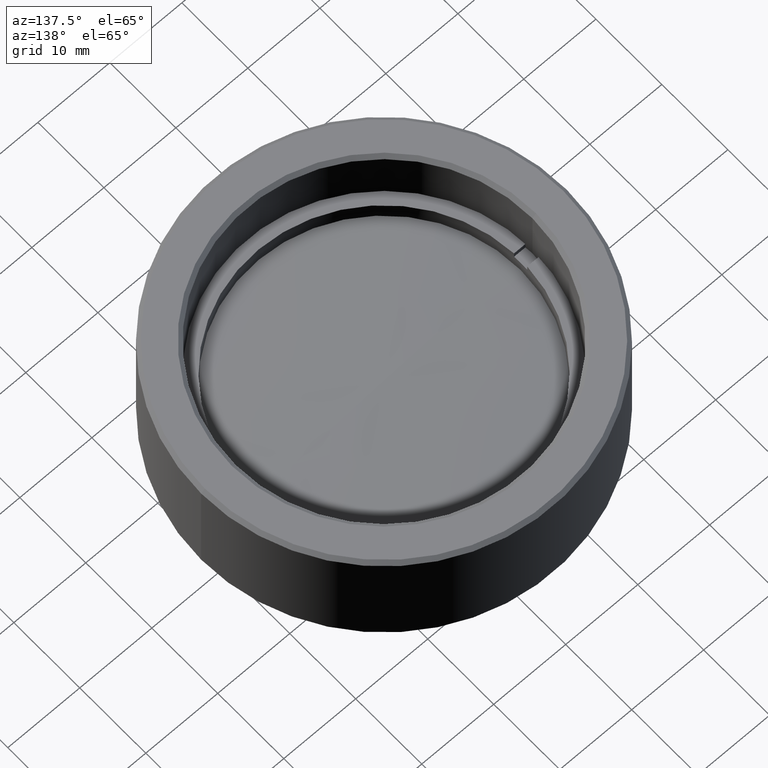
[diagram: clean part render]
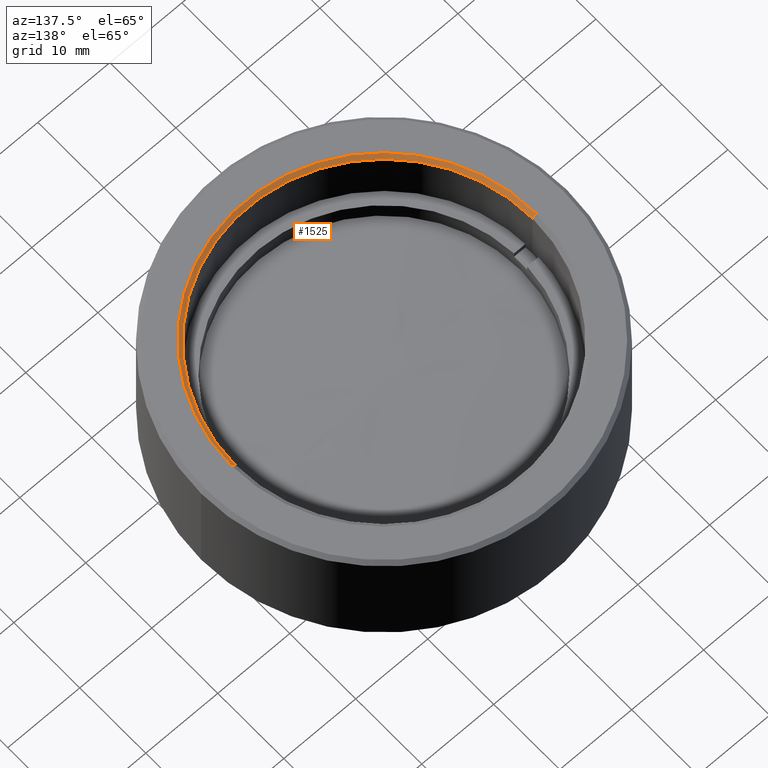
[diagram: same view with one face highlighted and labeled with its STEP entity id]
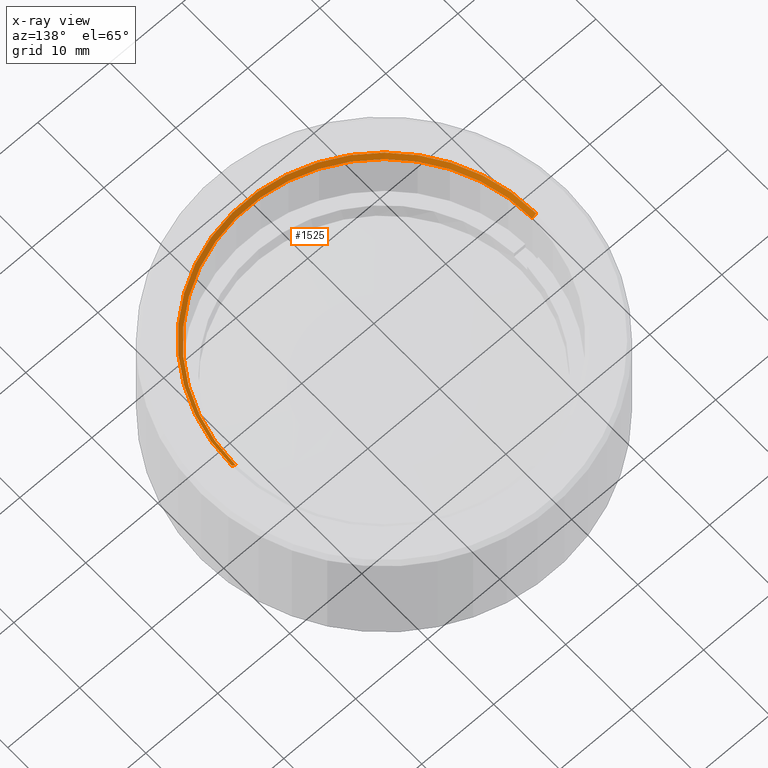
[diagram: x-ray of the same camera — body ghosted, the highlighted face saturated]
A machine part, auxiliary view. The second image highlights one B-rep face of the part: STEP entity #1525.
The next image is the same camera in x-ray: the body ghosted, the highlighted face saturated — about 0% of this face is hidden behind the body in this view.
In plain terms, the highlighted conical surface has half-angle 45 deg.
Its self-contained STEP definition (entity closure, byte-faithful):
#45 = DIRECTION ( 'NONE',  ( 1.000000000000000000, 0.000000000000000000, 0.000000000000000000 ) ) ;
#72 = EDGE_CURVE ( 'NONE', #1359, #111, #873, .T. ) ;
#111 = VERTEX_POINT ( 'NONE', #1603 ) ;
#157 = AXIS2_PLACEMENT_3D ( 'NONE', #317, #1666, #1542 ) ;
#173 = FACE_OUTER_BOUND ( 'NONE', #545, .T. ) ;
#206 = DIRECTION ( 'NONE',  ( 0.7071067811865474617, 0.000000000000000000, 0.7071067811865474617 ) ) ;
#249 = DIRECTION ( 'NONE',  ( 0.000000000000000000, 0.000000000000000000, 1.000000000000000000 ) ) ;
#315 = VECTOR ( 'NONE', #206, 1000.000000000000114 ) ;
#317 = CARTESIAN_POINT ( 'NONE',  ( 0.000000000000000000, 0.000000000000000000, 21.50000000000000000 ) ) ;
#437 = AXIS2_PLACEMENT_3D ( 'NONE', #700, #1258, #45 ) ;
#460 = ORIENTED_EDGE ( 'NONE', *, *, #1480, .T. ) ;
#484 = ORIENTED_EDGE ( 'NONE', *, *, #1495, .F. ) ;
#545 = EDGE_LOOP ( 'NONE', ( #754, #460, #484, #1159 ) ) ;
#700 = CARTESIAN_POINT ( 'NONE',  ( 0.000000000000000000, 0.000000000000000000, 20.99999999999994316 ) ) ;
#754 = ORIENTED_EDGE ( 'NONE', *, *, #1139, .F. ) ;
#873 = LINE ( 'NONE', #1156, #315 ) ;
#915 = CIRCLE ( 'NONE', #157, 21.12500000000005684 ) ;
#916 = CARTESIAN_POINT ( 'NONE',  ( 0.000000000000000000, 0.000000000000000000, 20.99999999999994316 ) ) ;
#992 = AXIS2_PLACEMENT_3D ( 'NONE', #916, #249, #1576 ) ;
#1039 = CONICAL_SURFACE ( 'NONE', #437, 20.62500000000000000, 0.7853981633974482790 ) ;
#1051 = CARTESIAN_POINT ( 'NONE',  ( -21.12500000000005684, 2.587066363198790654E-15, 21.50000000000000000 ) ) ;
#1085 = CIRCLE ( 'NONE', #992, 20.62500000000000000 ) ;
#1139 = EDGE_CURVE ( 'NONE', #1198, #1359, #1085, .T. ) ;
#1156 = CARTESIAN_POINT ( 'NONE',  ( 20.62500000000000000, 0.000000000000000000, 20.99999999999994316 ) ) ;
#1159 = ORIENTED_EDGE ( 'NONE', *, *, #72, .F. ) ;
#1198 = VERTEX_POINT ( 'NONE', #1316 ) ;
#1258 = DIRECTION ( 'NONE',  ( 0.000000000000000000, 0.000000000000000000, 1.000000000000000000 ) ) ;
#1269 = CARTESIAN_POINT ( 'NONE',  ( -20.62500000000000000, 2.525834023241415981E-15, 20.99999999999994316 ) ) ;
#1287 = VERTEX_POINT ( 'NONE', #1051 ) ;
#1316 = CARTESIAN_POINT ( 'NONE',  ( -20.62500000000000000, 2.525834023241415981E-15, 20.99999999999994316 ) ) ;
#1356 = CARTESIAN_POINT ( 'NONE',  ( 20.62500000000000000, 0.000000000000000000, 20.99999999999994316 ) ) ;
#1359 = VERTEX_POINT ( 'NONE', #1356 ) ;
#1389 = LINE ( 'NONE', #1269, #1679 ) ;
#1480 = EDGE_CURVE ( 'NONE', #1198, #1287, #1389, .T. ) ;
#1495 = EDGE_CURVE ( 'NONE', #111, #1287, #915, .T. ) ;
#1515 = DIRECTION ( 'NONE',  ( -0.7071067811865474617, 8.659560562354932858E-17, 0.7071067811865474617 ) ) ;
#1525 = ADVANCED_FACE ( 'NONE', ( #173 ), #1039, .F. ) ;
#1542 = DIRECTION ( 'NONE',  ( 1.000000000000000000, 0.000000000000000000, 0.000000000000000000 ) ) ;
#1576 = DIRECTION ( 'NONE',  ( 1.000000000000000000, 0.000000000000000000, 0.000000000000000000 ) ) ;
#1603 = CARTESIAN_POINT ( 'NONE',  ( 21.12500000000005684, 0.000000000000000000, 21.50000000000000000 ) ) ;
#1666 = DIRECTION ( 'NONE',  ( -0.000000000000000000, -0.000000000000000000, -1.000000000000000000 ) ) ;
#1679 = VECTOR ( 'NONE', #1515, 1000.000000000000114 ) ;